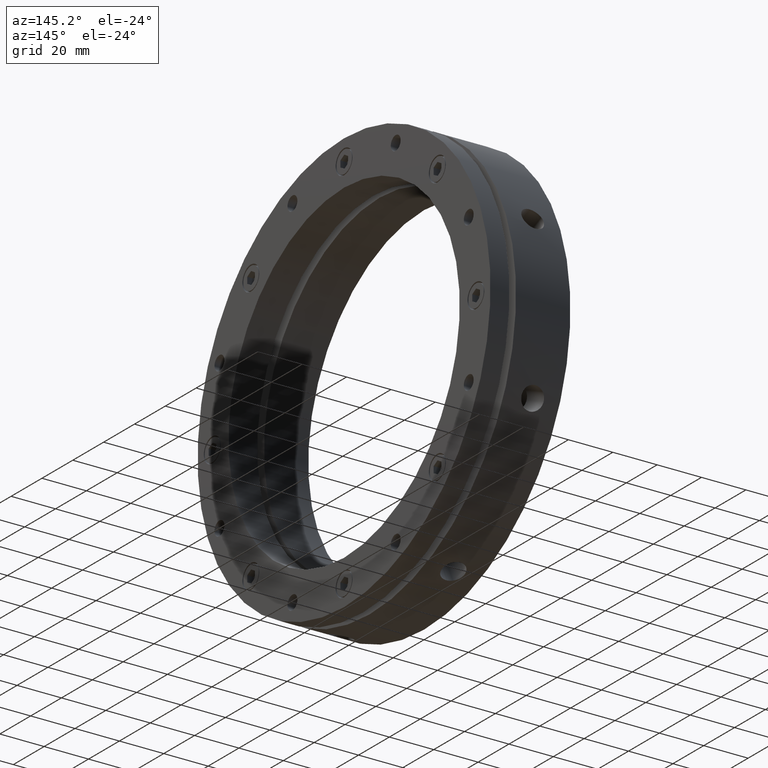
[diagram: clean part render]
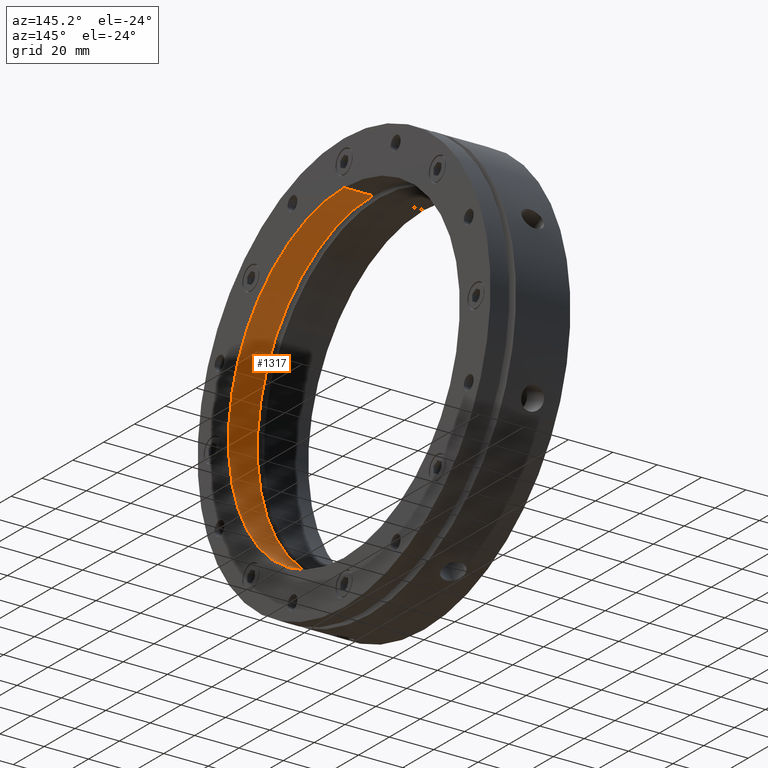
[diagram: same view with one face highlighted and labeled with its STEP entity id]
A machine part, auxiliary view. The second image highlights one B-rep face of the part: STEP entity #1317.
In plain terms, the highlighted cylindrical surface (partial cylindrical patch) has radius 75 mm, axis along (1, 0, 0).
Its self-contained STEP definition (entity closure, byte-faithful):
#247 = DIRECTION ( 'NONE',  ( 0.0000000000000000000, 0.0000000000000000000, -1.000000000000000000 ) ) ;
#249 = DIRECTION ( 'NONE',  ( 1.000000000000000000, 0.0000000000000000000, 0.0000000000000000000 ) ) ;
#251 = CARTESIAN_POINT ( 'NONE',  ( 17.99999999999997900, 0.0000000000000000000, 0.0000000000000000000 ) ) ;
#635 = CARTESIAN_POINT ( 'NONE',  ( 35.99999999999998600, 9.184850993605148700E-015, 75.00000000000000000 ) ) ;
#636 = CARTESIAN_POINT ( 'NONE',  ( 35.99999999999998600, 0.0000000000000000000, -75.00000000000000000 ) ) ;
#640 = CARTESIAN_POINT ( 'NONE',  ( 22.99999999999998600, 9.184850993605148700E-015, 75.00000000000000000 ) ) ;
#641 = CARTESIAN_POINT ( 'NONE',  ( 22.99999999999998600, 0.0000000000000000000, -75.00000000000000000 ) ) ;
#718 = DIRECTION ( 'NONE',  ( 1.000000000000000000, 0.0000000000000000000, 0.0000000000000000000 ) ) ;
#729 = CARTESIAN_POINT ( 'NONE',  ( 17.99999999999997900, 0.0000000000000000000, -75.00000000000000000 ) ) ;
#737 = CARTESIAN_POINT ( 'NONE',  ( 22.99999999999998600, 0.0000000000000000000, 0.0000000000000000000 ) ) ;
#738 = DIRECTION ( 'NONE',  ( -1.000000000000000000, -0.0000000000000000000, -0.0000000000000000000 ) ) ;
#739 = DIRECTION ( 'NONE',  ( 0.0000000000000000000, 0.0000000000000000000, -1.000000000000000000 ) ) ;
#982 = CARTESIAN_POINT ( 'NONE',  ( 35.99999999999998600, 0.0000000000000000000, 0.0000000000000000000 ) ) ;
#983 = DIRECTION ( 'NONE',  ( -1.000000000000000000, -0.0000000000000000000, -0.0000000000000000000 ) ) ;
#984 = DIRECTION ( 'NONE',  ( 0.0000000000000000000, 0.0000000000000000000, -1.000000000000000000 ) ) ;
#994 = DIRECTION ( 'NONE',  ( 1.000000000000000000, 0.0000000000000000000, 0.0000000000000000000 ) ) ;
#999 = CARTESIAN_POINT ( 'NONE',  ( 17.99999999999997900, 9.184850993605148700E-015, 75.00000000000000000 ) ) ;
#1147 = VECTOR ( 'NONE', #994, 1000.000000000000000 ) ;
#1153 = LINE ( 'NONE', #999, #1147 ) ;
#1162 = CIRCLE ( 'NONE', #5647, 75.00000000000000000 ) ;
#1317 = ADVANCED_FACE ( 'NONE', ( #4011 ), #4004, .F. ) ;
#1644 = VERTEX_POINT ( 'NONE', #635 ) ;
#1645 = VERTEX_POINT ( 'NONE', #636 ) ;
#1649 = VERTEX_POINT ( 'NONE', #640 ) ;
#1650 = VERTEX_POINT ( 'NONE', #641 ) ;
#1747 = AXIS2_PLACEMENT_3D ( 'NONE', #737, #738, #739 ) ;
#1866 = EDGE_CURVE ( 'NONE', #1650, #1645, #5640, .T. ) ;
#1867 = EDGE_CURVE ( 'NONE', #1650, #1649, #5637, .T. ) ;
#2052 = ORIENTED_EDGE ( 'NONE', *, *, #1866, .F. ) ;
#2053 = ORIENTED_EDGE ( 'NONE', *, *, #3547, .F. ) ;
#2055 = ORIENTED_EDGE ( 'NONE', *, *, #3555, .T. ) ;
#2057 = ORIENTED_EDGE ( 'NONE', *, *, #1867, .T. ) ;
#3547 = EDGE_CURVE ( 'NONE', #1645, #1644, #1162, .T. ) ;
#3555 = EDGE_CURVE ( 'NONE', #1649, #1644, #1153, .T. ) ;
#3621 = EDGE_LOOP ( 'NONE', ( #2057, #2055, #2053, #2052 ) ) ;
#3779 = AXIS2_PLACEMENT_3D ( 'NONE', #251, #249, #247 ) ;
#4004 = CYLINDRICAL_SURFACE ( 'NONE', #3779, 75.00000000000000000 ) ;
#4011 = FACE_OUTER_BOUND ( 'NONE', #3621, .T. ) ;
#5635 = VECTOR ( 'NONE', #718, 1000.000000000000000 ) ;
#5637 = CIRCLE ( 'NONE', #1747, 75.00000000000000000 ) ;
#5640 = LINE ( 'NONE', #729, #5635 ) ;
#5647 = AXIS2_PLACEMENT_3D ( 'NONE', #982, #983, #984 ) ;